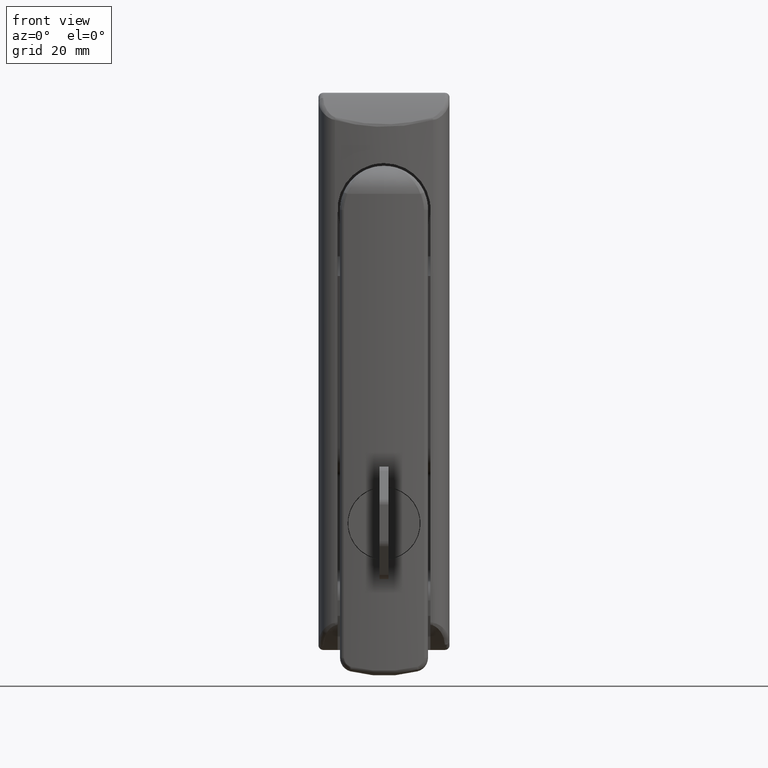
[diagram: clean part render]
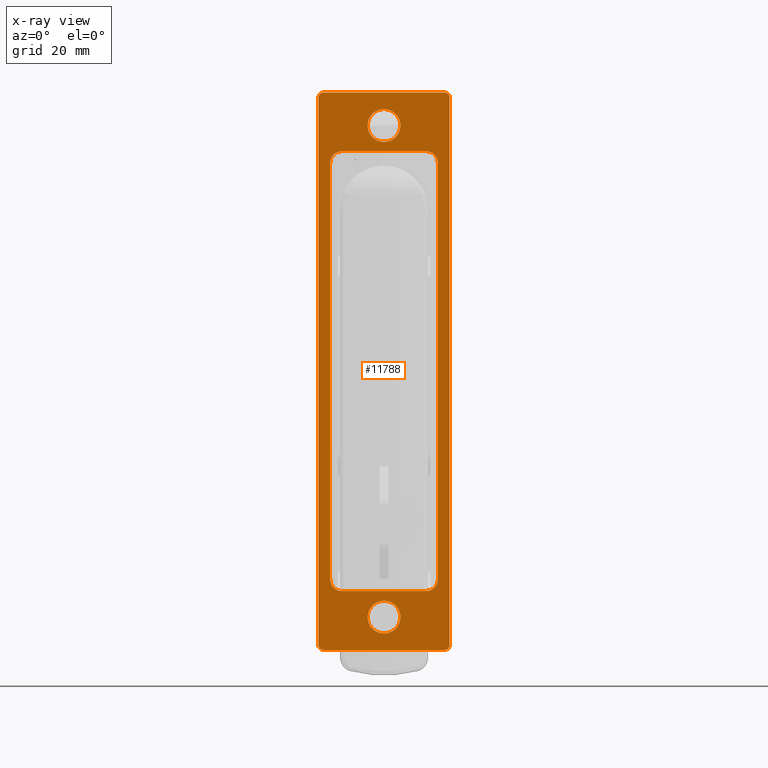
[diagram: x-ray — body ghosted, one internal face saturated and labeled with its STEP entity id]
A machine part, front view, then the same camera in x-ray: the body is ghosted and one INTERNAL B-rep face — a face not visible from any outside direction — is saturated and labeled: STEP entity #11788.
In plain terms, the highlighted planar face has unit normal (0, -1, 0).
Its self-contained STEP definition (entity closure, byte-faithful):
#1063 = CARTESIAN_POINT ( 'NONE',  ( -17.49999999999920100, -14.00000000000000000, 23.99999999999899800 ) ) ;
#1084 = CARTESIAN_POINT ( 'NONE',  ( -17.49999999999920100, -13.00000000000000000, -94.00000000000979100 ) ) ;
#1085 = DIRECTION ( 'NONE',  ( 0.0000000000000000000, 1.000000000000000000, 0.0000000000000000000 ) ) ;
#1086 = VECTOR ( 'NONE', #1085, 1000.000000000000000 ) ;
#1087 = CARTESIAN_POINT ( 'NONE',  ( -17.49999999999920100, -986.0000000000000000, -94.00000000000979100 ) ) ;
#1088 = LINE ( 'NONE', #1087, #1086 ) ;
#1089 = CARTESIAN_POINT ( 'NONE',  ( -17.49999999999920100, 13.00000000000000000, -94.00000000000979100 ) ) ;
#1317 = CARTESIAN_POINT ( 'NONE',  ( -17.49999999999920100, 11.50000000000000000, 9.999999999996308700 ) ) ;
#1318 = DIRECTION ( 'NONE',  ( 0.0000000000000000000, 0.0000000000000000000, -1.000000000000000000 ) ) ;
#1319 = VECTOR ( 'NONE', #1318, 1000.000000000000000 ) ;
#1320 = CARTESIAN_POINT ( 'NONE',  ( -17.49999999999920100, 11.50000000000000000, 0.0000000000000000000 ) ) ;
#1321 = LINE ( 'NONE', #1320, #1319 ) ;
#1322 = CARTESIAN_POINT ( 'NONE',  ( -17.49999999999920100, 11.50000000000000000, -78.93516326708339600 ) ) ;
#1467 = DIRECTION ( 'NONE',  ( 0.0000000000000000000, 0.0000000000000000000, 1.000000000000000000 ) ) ;
#1468 = DIRECTION ( 'NONE',  ( 1.000000000000000000, 0.0000000000000000000, 0.0000000000000000000 ) ) ;
#1469 = CARTESIAN_POINT ( 'NONE',  ( -17.49999999999920100, 0.0000000000000000000, -87.00000000001000400 ) ) ;
#1470 = AXIS2_PLACEMENT_3D ( 'NONE', #1469, #1468, #1467 ) ;
#1471 = CIRCLE ( 'NONE', #1470, 3.499999999999753100 ) ;
#1472 = DIRECTION ( 'NONE',  ( 0.0000000000000000000, 0.0000000000000000000, 1.000000000000000000 ) ) ;
#1473 = DIRECTION ( 'NONE',  ( -1.000000000000000000, 0.0000000000000000000, 0.0000000000000000000 ) ) ;
#1474 = CARTESIAN_POINT ( 'NONE',  ( -17.49999999999920100, -9.000000000000000000, 9.999999999996308700 ) ) ;
#1475 = AXIS2_PLACEMENT_3D ( 'NONE', #1474, #1473, #1472 ) ;
#1476 = CIRCLE ( 'NONE', #1475, 2.500000000000000400 ) ;
#1496 = CARTESIAN_POINT ( 'NONE',  ( -17.49999999999920100, -11.50000000000000000, 9.999999999996308700 ) ) ;
#1530 = CARTESIAN_POINT ( 'NONE',  ( -17.49999999999920100, -11.50000000000000000, -78.93516326708339600 ) ) ;
#1531 = DIRECTION ( 'NONE',  ( 0.0000000000000000000, 0.0000000000000000000, -1.000000000000000000 ) ) ;
#1532 = VECTOR ( 'NONE', #1531, 1000.000000000000000 ) ;
#1533 = CARTESIAN_POINT ( 'NONE',  ( -17.49999999999920100, -11.50000000000000000, 0.0000000000000000000 ) ) ;
#1534 = LINE ( 'NONE', #1533, #1532 ) ;
#11782 = VERTEX_POINT ( 'NONE', #16685 ) ;
#11788 = ADVANCED_FACE ( 'NONE', ( #16890, #16884, #16883, #16882 ), #16881, .F. ) ;
#11789 = EDGE_LOOP ( 'NONE', ( #11790, #11792 ) ) ;
#11790 = ORIENTED_EDGE ( 'NONE', *, *, #11791, .F. ) ;
#11791 = EDGE_CURVE ( 'NONE', #23902, #23897, #16874, .T. ) ;
#11792 = ORIENTED_EDGE ( 'NONE', *, *, #23899, .F. ) ;
#11793 = EDGE_LOOP ( 'NONE', ( #12023, #12027, #12029, #12030, #11917, #11918, #11920, #11921 ) ) ;
#11917 = ORIENTED_EDGE ( 'NONE', *, *, #21051, .T. ) ;
#11918 = ORIENTED_EDGE ( 'NONE', *, *, #11919, .T. ) ;
#11919 = EDGE_CURVE ( 'NONE', #21048, #11782, #17151, .T. ) ;
#11920 = ORIENTED_EDGE ( 'NONE', *, *, #12056, .T. ) ;
#11921 = ORIENTED_EDGE ( 'NONE', *, *, #11922, .T. ) ;
#11922 = EDGE_CURVE ( 'NONE', #12017, #12026, #17145, .T. ) ;
#11923 = EDGE_LOOP ( 'NONE', ( #11924, #12003, #12005, #11936, #12019, #12053, #21227, #21228 ) ) ;
#11924 = ORIENTED_EDGE ( 'NONE', *, *, #12000, .F. ) ;
#11936 = ORIENTED_EDGE ( 'NONE', *, *, #11937, .T. ) ;
#11937 = EDGE_CURVE ( 'NONE', #21147, #11938, #17109, .T. ) ;
#11938 = VERTEX_POINT ( 'NONE', #17106 ) ;
#12000 = EDGE_CURVE ( 'NONE', #12001, #12002, #17401, .T. ) ;
#12001 = VERTEX_POINT ( 'NONE', #17397 ) ;
#12002 = VERTEX_POINT ( 'NONE', #17396 ) ;
#12003 = ORIENTED_EDGE ( 'NONE', *, *, #12004, .T. ) ;
#12004 = EDGE_CURVE ( 'NONE', #12001, #21150, #17458, .T. ) ;
#12005 = ORIENTED_EDGE ( 'NONE', *, *, #21149, .T. ) ;
#12017 = VERTEX_POINT ( 'NONE', #17475 ) ;
#12019 = ORIENTED_EDGE ( 'NONE', *, *, #12054, .T. ) ;
#12020 = VERTEX_POINT ( 'NONE', #17474 ) ;
#12022 = EDGE_CURVE ( 'NONE', #12020, #21063, #17473, .T. ) ;
#12023 = ORIENTED_EDGE ( 'NONE', *, *, #12024, .F. ) ;
#12024 = EDGE_CURVE ( 'NONE', #12025, #12026, #17469, .T. ) ;
#12025 = VERTEX_POINT ( 'NONE', #17465 ) ;
#12026 = VERTEX_POINT ( 'NONE', #17464 ) ;
#12027 = ORIENTED_EDGE ( 'NONE', *, *, #12028, .T. ) ;
#12028 = EDGE_CURVE ( 'NONE', #12025, #21063, #17463, .T. ) ;
#12029 = ORIENTED_EDGE ( 'NONE', *, *, #12022, .F. ) ;
#12030 = ORIENTED_EDGE ( 'NONE', *, *, #12031, .T. ) ;
#12031 = EDGE_CURVE ( 'NONE', #12020, #21052, #17515, .T. ) ;
#12049 = EDGE_CURVE ( 'NONE', #12055, #21272, #17548, .T. ) ;
#12053 = ORIENTED_EDGE ( 'NONE', *, *, #12049, .T. ) ;
#12054 = EDGE_CURVE ( 'NONE', #11938, #12055, #17526, .T. ) ;
#12055 = VERTEX_POINT ( 'NONE', #17522 ) ;
#12056 = EDGE_CURVE ( 'NONE', #11782, #12017, #17527, .T. ) ;
#16685 = CARTESIAN_POINT ( 'NONE',  ( -17.49999999999920100, 14.00000000000000000, -93.00000000000979100 ) ) ;
#16870 = DIRECTION ( 'NONE',  ( 0.0000000000000000000, 0.0000000000000000000, 1.000000000000000000 ) ) ;
#16871 = DIRECTION ( 'NONE',  ( 1.000000000000000000, 0.0000000000000000000, 0.0000000000000000000 ) ) ;
#16872 = CARTESIAN_POINT ( 'NONE',  ( -17.49999999999920100, 0.0000000000000000000, 17.99999999999920100 ) ) ;
#16873 = AXIS2_PLACEMENT_3D ( 'NONE', #16872, #16871, #16870 ) ;
#16874 = CIRCLE ( 'NONE', #16873, 3.499999999999756600 ) ;
#16875 = DIRECTION ( 'NONE',  ( 0.0000000000000000000, 0.0000000000000000000, 1.000000000000000000 ) ) ;
#16876 = DIRECTION ( 'NONE',  ( -1.000000000000000000, 0.0000000000000000000, 0.0000000000000000000 ) ) ;
#16877 = CARTESIAN_POINT ( 'NONE',  ( -17.49999999999920100, -986.0000000000000000, -97.72965304707409500 ) ) ;
#16878 = AXIS2_PLACEMENT_3D ( 'NONE', #16877, #16876, #16875 ) ;
#16881 = PLANE ( 'NONE',  #16878 ) ;
#16882 = FACE_BOUND ( 'NONE', #21230, .T. ) ;
#16883 = FACE_BOUND ( 'NONE', #11923, .T. ) ;
#16884 = FACE_OUTER_BOUND ( 'NONE', #11793, .T. ) ;
#16890 = FACE_BOUND ( 'NONE', #11789, .T. ) ;
#17078 = CARTESIAN_POINT ( 'NONE',  ( -17.49999999999920100, 9.000000000000000000, -81.43715368307729800 ) ) ;
#17079 = CARTESIAN_POINT ( 'NONE',  ( -17.49999999999920400, 9.330273631315463900, -81.43715368307719900 ) ) ;
#17080 = CARTESIAN_POINT ( 'NONE',  ( -17.49999999999920100, 9.658447776881429200, -81.37070598980682200 ) ) ;
#17081 = CARTESIAN_POINT ( 'NONE',  ( -17.49999999999920400, 10.10940111266167000, -81.18322619845230300 ) ) ;
#17082 = CARTESIAN_POINT ( 'NONE',  ( -17.49999999999920100, 10.25486666207991600, -81.10537493035967300 ) ) ;
#17083 = CARTESIAN_POINT ( 'NONE',  ( -17.49999999999920800, 10.52783835199936000, -80.92237695434900500 ) ) ;
#17084 = CARTESIAN_POINT ( 'NONE',  ( -17.49999999999920100, 10.65355761841223800, -80.81877831359838600 ) ) ;
#17086 = CARTESIAN_POINT ( 'NONE',  ( -17.49999999999920100, 10.88395806836894400, -80.58793809891881200 ) ) ;
#17087 = CARTESIAN_POINT ( 'NONE',  ( -17.49999999999920100, 10.98941322848069600, -80.45917859671038700 ) ) ;
#17090 = CARTESIAN_POINT ( 'NONE',  ( -17.49999999999920100, 11.17054415989299100, -80.18732912770019500 ) ) ;
#17092 = CARTESIAN_POINT ( 'NONE',  ( -17.49999999999920100, 11.24720810179201400, -80.04370019117625600 ) ) ;
#17094 = CARTESIAN_POINT ( 'NONE',  ( -17.49999999999920100, 11.37248023929119600, -79.74089386888805100 ) ) ;
#17095 = CARTESIAN_POINT ( 'NONE',  ( -17.49999999999920100, 11.42044799799453400, -79.58215005960092000 ) ) ;
#17096 = CARTESIAN_POINT ( 'NONE',  ( -17.49999999999920800, 11.48382570188951800, -79.26267536129790900 ) ) ;
#17097 = CARTESIAN_POINT ( 'NONE',  ( -17.49999999999920400, 11.50000000000000200, -79.10029632539719600 ) ) ;
#17098 = CARTESIAN_POINT ( 'NONE',  ( -17.49999999999920100, 11.50000000000000000, -78.93516326708339600 ) ) ;
#17106 = CARTESIAN_POINT ( 'NONE',  ( -17.49999999999920100, 9.000000000000000000, -81.43715368307729800 ) ) ;
#17109 = B_SPLINE_CURVE_WITH_KNOTS ( 'NONE', 3,
 ( #17098, #17097, #17096, #17095, #17094, #17092, #17090, #17087, #17086, #17084, #17083, #17082, #17081, #17080, #17079, #17078 ),
 .UNSPECIFIED., .F., .F.,
 ( 4, 2, 2, 2, 2, 2, 2, 4 ),
 ( 0.0000000000000000000, 0.0004883702463901358500, 0.0009767404927802717000, 0.001465110739170407500, 0.001953480985560543400, 0.002441851231950679200, 0.002930221478340815100, 0.003906961971121086800 ),
 .UNSPECIFIED. ) ;
#17137 = DIRECTION ( 'NONE',  ( 0.0000000000000000000, 0.0000000000000000000, 1.000000000000000000 ) ) ;
#17139 = DIRECTION ( 'NONE',  ( 1.000000000000000000, 0.0000000000000000000, 0.0000000000000000000 ) ) ;
#17141 = CARTESIAN_POINT ( 'NONE',  ( -17.49999999999920100, 13.00000000000000000, 23.99999999999899800 ) ) ;
#17143 = AXIS2_PLACEMENT_3D ( 'NONE', #17141, #17139, #17137 ) ;
#17145 = CIRCLE ( 'NONE', #17143, 1.000000000000000900 ) ;
#17147 = DIRECTION ( 'NONE',  ( 0.0000000000000000000, 0.0000000000000000000, 1.000000000000000000 ) ) ;
#17148 = DIRECTION ( 'NONE',  ( 1.000000000000000000, 0.0000000000000000000, 0.0000000000000000000 ) ) ;
#17149 = CARTESIAN_POINT ( 'NONE',  ( -17.49999999999920100, 13.00000000000000000, -93.00000000000979100 ) ) ;
#17150 = AXIS2_PLACEMENT_3D ( 'NONE', #17149, #17148, #17147 ) ;
#17151 = CIRCLE ( 'NONE', #17150, 1.000000000000000900 ) ;
#17396 = CARTESIAN_POINT ( 'NONE',  ( -17.49999999999920100, -9.000000000000000000, 12.49999999999630000 ) ) ;
#17397 = CARTESIAN_POINT ( 'NONE',  ( -17.49999999999920100, 9.000000000000000000, 12.49999999999630000 ) ) ;
#17398 = DIRECTION ( 'NONE',  ( 0.0000000000000000000, -1.000000000000000000, 0.0000000000000000000 ) ) ;
#17399 = VECTOR ( 'NONE', #17398, 1000.000000000000000 ) ;
#17400 = CARTESIAN_POINT ( 'NONE',  ( -17.49999999999920100, 988.5000000000000000, 12.49999999999630000 ) ) ;
#17401 = LINE ( 'NONE', #17400, #17399 ) ;
#17454 = DIRECTION ( 'NONE',  ( 0.0000000000000000000, 0.0000000000000000000, 1.000000000000000000 ) ) ;
#17455 = DIRECTION ( 'NONE',  ( -1.000000000000000000, 0.0000000000000000000, 0.0000000000000000000 ) ) ;
#17456 = CARTESIAN_POINT ( 'NONE',  ( -17.49999999999920100, 9.000000000000000000, 9.999999999996308700 ) ) ;
#17457 = AXIS2_PLACEMENT_3D ( 'NONE', #17456, #17455, #17454 ) ;
#17458 = CIRCLE ( 'NONE', #17457, 2.500000000000000400 ) ;
#17459 = DIRECTION ( 'NONE',  ( 0.0000000000000000000, 0.0000000000000000000, 1.000000000000000000 ) ) ;
#17460 = DIRECTION ( 'NONE',  ( 1.000000000000000000, 0.0000000000000000000, 0.0000000000000000000 ) ) ;
#17461 = CARTESIAN_POINT ( 'NONE',  ( -17.49999999999920100, -13.00000000000000000, 23.99999999999899800 ) ) ;
#17462 = AXIS2_PLACEMENT_3D ( 'NONE', #17461, #17460, #17459 ) ;
#17463 = CIRCLE ( 'NONE', #17462, 1.000000000000000900 ) ;
#17464 = CARTESIAN_POINT ( 'NONE',  ( -17.49999999999920100, 13.00000000000000000, 24.99999999999899800 ) ) ;
#17465 = CARTESIAN_POINT ( 'NONE',  ( -17.49999999999920100, -13.00000000000000000, 24.99999999999899800 ) ) ;
#17466 = DIRECTION ( 'NONE',  ( 0.0000000000000000000, 1.000000000000000000, 0.0000000000000000000 ) ) ;
#17467 = VECTOR ( 'NONE', #17466, 1000.000000000000000 ) ;
#17468 = CARTESIAN_POINT ( 'NONE',  ( -17.49999999999920100, -986.0000000000000000, 24.99999999999899800 ) ) ;
#17469 = LINE ( 'NONE', #17468, #17467 ) ;
#17470 = DIRECTION ( 'NONE',  ( 0.0000000000000000000, 0.0000000000000000000, 1.000000000000000000 ) ) ;
#17471 = VECTOR ( 'NONE', #17470, 1000.000000000000000 ) ;
#17472 = CARTESIAN_POINT ( 'NONE',  ( -17.49999999999920100, -14.00000000000000000, -97.72965304707409500 ) ) ;
#17473 = LINE ( 'NONE', #17472, #17471 ) ;
#17474 = CARTESIAN_POINT ( 'NONE',  ( -17.49999999999920100, -14.00000000000000000, -93.00000000000979100 ) ) ;
#17475 = CARTESIAN_POINT ( 'NONE',  ( -17.49999999999920100, 14.00000000000000000, 23.99999999999899800 ) ) ;
#17511 = DIRECTION ( 'NONE',  ( 0.0000000000000000000, 0.0000000000000000000, 1.000000000000000000 ) ) ;
#17512 = DIRECTION ( 'NONE',  ( 1.000000000000000000, 0.0000000000000000000, 0.0000000000000000000 ) ) ;
#17513 = CARTESIAN_POINT ( 'NONE',  ( -17.49999999999920100, -13.00000000000000000, -93.00000000000979100 ) ) ;
#17514 = AXIS2_PLACEMENT_3D ( 'NONE', #17513, #17512, #17511 ) ;
#17515 = CIRCLE ( 'NONE', #17514, 1.000000000000000900 ) ;
#17519 = DIRECTION ( 'NONE',  ( 0.0000000000000000000, 0.0000000000000000000, 1.000000000000000000 ) ) ;
#17520 = VECTOR ( 'NONE', #17519, 1000.000000000000000 ) ;
#17521 = CARTESIAN_POINT ( 'NONE',  ( -17.49999999999920100, 14.00000000000000000, -97.72965304707409500 ) ) ;
#17522 = CARTESIAN_POINT ( 'NONE',  ( -17.49999999999920100, -9.000000000000000000, -81.43715368307729800 ) ) ;
#17523 = DIRECTION ( 'NONE',  ( 0.0000000000000000000, -1.000000000000000000, 0.0000000000000000000 ) ) ;
#17524 = VECTOR ( 'NONE', #17523, 1000.000000000000000 ) ;
#17525 = CARTESIAN_POINT ( 'NONE',  ( -17.49999999999920100, 988.5000000000000000, -81.43715368307729800 ) ) ;
#17526 = LINE ( 'NONE', #17525, #17524 ) ;
#17527 = LINE ( 'NONE', #17521, #17520 ) ;
#17528 = CARTESIAN_POINT ( 'NONE',  ( -17.49999999999920100, -11.50000000000000000, -78.93516326708339600 ) ) ;
#17529 = CARTESIAN_POINT ( 'NONE',  ( -17.49999999999920100, -11.49999999999999500, -79.26542490673723800 ) ) ;
#17530 = CARTESIAN_POINT ( 'NONE',  ( -17.49999999999920100, -11.43372295761238500, -79.59361515415136500 ) ) ;
#17531 = CARTESIAN_POINT ( 'NONE',  ( -17.49999999999920400, -11.24662417787838300, -80.04472951624970300 ) ) ;
#17532 = CARTESIAN_POINT ( 'NONE',  ( -17.49999999999919700, -11.16896517263347000, -80.19020043648309600 ) ) ;
#17533 = CARTESIAN_POINT ( 'NONE',  ( -17.49999999999920800, -10.98622956737878400, -80.46344202508412000 ) ) ;
#17534 = CARTESIAN_POINT ( 'NONE',  ( -17.49999999999920100, -10.88276898320754100, -80.58929364015568800 ) ) ;
#17535 = CARTESIAN_POINT ( 'NONE',  ( -17.49999999999920400, -10.65221856023910800, -80.81995393016225600 ) ) ;
#17536 = CARTESIAN_POINT ( 'NONE',  ( -17.49999999999919700, -10.52359690336904500, -80.92555621675629100 ) ) ;
#17537 = CARTESIAN_POINT ( 'NONE',  ( -17.49999999999920100, -10.25191721734375800, -81.10700737038857300 ) ) ;
#17538 = CARTESIAN_POINT ( 'NONE',  ( -17.49999999999920100, -10.10836402329097800, -81.18381446637127400 ) ) ;
#17539 = CARTESIAN_POINT ( 'NONE',  ( -17.49999999999920400, -9.805687619398003800, -81.30933309193683600 ) ) ;
#17540 = CARTESIAN_POINT ( 'NONE',  ( -17.49999999999919400, -9.646956425676664900, -81.35741579672802000 ) ) ;
#17541 = CARTESIAN_POINT ( 'NONE',  ( -17.49999999999920100, -9.327507447516572000, -81.42094030757563400 ) ) ;
#17542 = CARTESIAN_POINT ( 'NONE',  ( -17.49999999999920100, -9.165134529658313800, -81.43715368307728400 ) ) ;
#17543 = CARTESIAN_POINT ( 'NONE',  ( -17.49999999999920100, -9.000000000000000000, -81.43715368307729800 ) ) ;
#17548 = B_SPLINE_CURVE_WITH_KNOTS ( 'NONE', 3,
 ( #17543, #17542, #17541, #17540, #17539, #17538, #17537, #17536, #17535, #17534, #17533, #17532, #17531, #17530, #17529, #17528 ),
 .UNSPECIFIED., .F., .F.,
 ( 4, 2, 2, 2, 2, 2, 2, 4 ),
 ( 0.0000000000000000000, 0.0004883699336044716200, 0.0009767398672089432300, 0.001465109800813415000, 0.001953479734417886500, 0.002441849668022357800, 0.002930219601626829900, 0.003906959468835813700 ),
 .UNSPECIFIED. ) ;
#21048 = VERTEX_POINT ( 'NONE', #1089 ) ;
#21051 = EDGE_CURVE ( 'NONE', #21052, #21048, #1088, .T. ) ;
#21052 = VERTEX_POINT ( 'NONE', #1084 ) ;
#21063 = VERTEX_POINT ( 'NONE', #1063 ) ;
#21147 = VERTEX_POINT ( 'NONE', #1322 ) ;
#21149 = EDGE_CURVE ( 'NONE', #21150, #21147, #1321, .T. ) ;
#21150 = VERTEX_POINT ( 'NONE', #1317 ) ;
#21227 = ORIENTED_EDGE ( 'NONE', *, *, #21271, .F. ) ;
#21228 = ORIENTED_EDGE ( 'NONE', *, *, #21229, .T. ) ;
#21229 = EDGE_CURVE ( 'NONE', #21253, #12002, #1476, .T. ) ;
#21230 = EDGE_LOOP ( 'NONE', ( #21231, #21233 ) ) ;
#21231 = ORIENTED_EDGE ( 'NONE', *, *, #21232, .F. ) ;
#21232 = EDGE_CURVE ( 'NONE', #23947, #23944, #1471, .T. ) ;
#21233 = ORIENTED_EDGE ( 'NONE', *, *, #23946, .F. ) ;
#21253 = VERTEX_POINT ( 'NONE', #1496 ) ;
#21271 = EDGE_CURVE ( 'NONE', #21253, #21272, #1534, .T. ) ;
#21272 = VERTEX_POINT ( 'NONE', #1530 ) ;
#23897 = VERTEX_POINT ( 'NONE', #27616 ) ;
#23899 = EDGE_CURVE ( 'NONE', #23897, #23902, #27615, .T. ) ;
#23902 = VERTEX_POINT ( 'NONE', #27610 ) ;
#23944 = VERTEX_POINT ( 'NONE', #27719 ) ;
#23946 = EDGE_CURVE ( 'NONE', #23944, #23947, #27718, .T. ) ;
#23947 = VERTEX_POINT ( 'NONE', #27713 ) ;
#27610 = CARTESIAN_POINT ( 'NONE',  ( -17.49999999999920100, 0.0000000000000000000, 21.49999999999895900 ) ) ;
#27611 = DIRECTION ( 'NONE',  ( 0.0000000000000000000, 0.0000000000000000000, 1.000000000000000000 ) ) ;
#27612 = DIRECTION ( 'NONE',  ( 1.000000000000000000, 0.0000000000000000000, 0.0000000000000000000 ) ) ;
#27613 = CARTESIAN_POINT ( 'NONE',  ( -17.49999999999920100, 0.0000000000000000000, 17.99999999999920100 ) ) ;
#27614 = AXIS2_PLACEMENT_3D ( 'NONE', #27613, #27612, #27611 ) ;
#27615 = CIRCLE ( 'NONE', #27614, 3.499999999999756600 ) ;
#27616 = CARTESIAN_POINT ( 'NONE',  ( -17.49999999999920100, 4.286122238378020600E-016, 14.49999999999944600 ) ) ;
#27713 = CARTESIAN_POINT ( 'NONE',  ( -17.49999999999920100, 0.0000000000000000000, -90.50000000000974900 ) ) ;
#27714 = DIRECTION ( 'NONE',  ( 0.0000000000000000000, 0.0000000000000000000, 1.000000000000000000 ) ) ;
#27715 = DIRECTION ( 'NONE',  ( 1.000000000000000000, 0.0000000000000000000, 0.0000000000000000000 ) ) ;
#27716 = CARTESIAN_POINT ( 'NONE',  ( -17.49999999999920100, 0.0000000000000000000, -87.00000000001000400 ) ) ;
#27717 = AXIS2_PLACEMENT_3D ( 'NONE', #27716, #27715, #27714 ) ;
#27718 = CIRCLE ( 'NONE', #27717, 3.499999999999753100 ) ;
#27719 = CARTESIAN_POINT ( 'NONE',  ( -17.49999999999920100, -4.286122238378022600E-016, -83.50000000001024600 ) ) ;